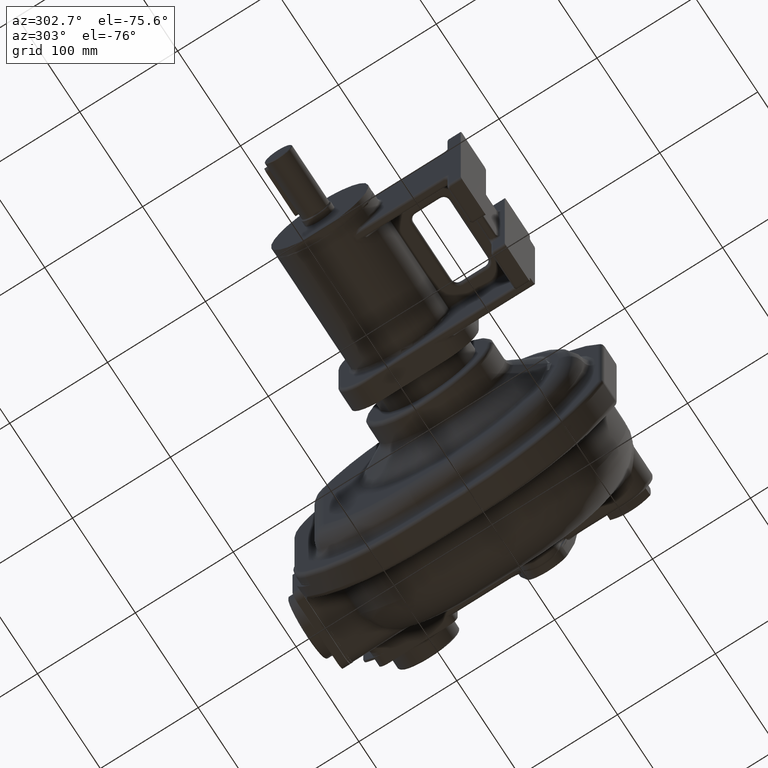
[diagram: clean part render]
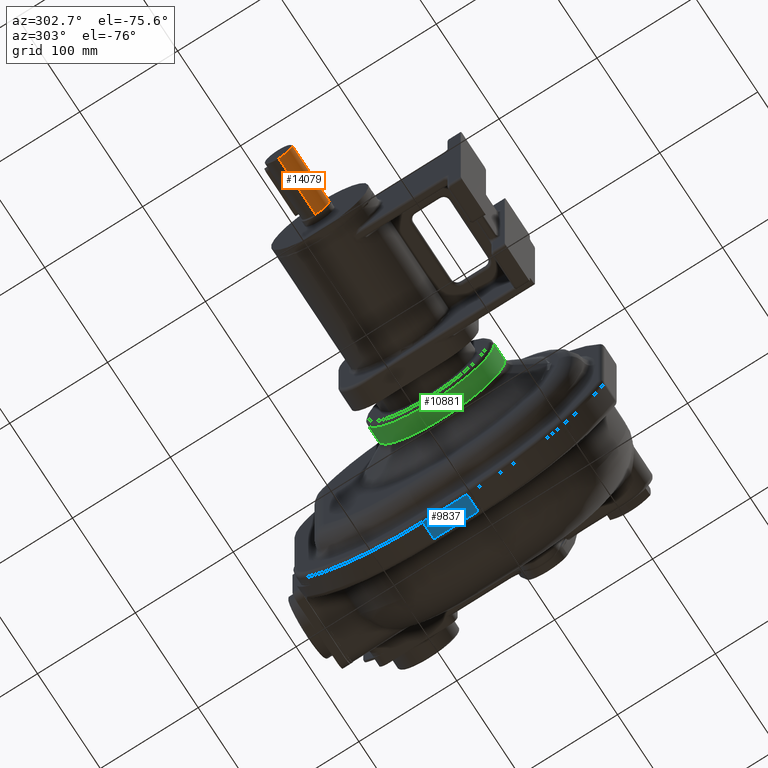
[diagram: same view with three faces highlighted in distinct colors, each labeled with its STEP entity id]
A machine part, auxiliary view with three faces highlighted in distinct colors.
Their STEP definitions:

[orange] entity #14079 — the highlighted cylindrical surface (edge-blend (fillet) strip) has radius 14 mm, axis along (1, 0, 0).
#3113=CARTESIAN_POINT('',(-2.808E2,0.E0,0.E0));
#3114=DIRECTION('',(1.E0,0.E0,0.E0));
#3115=DIRECTION('',(0.E0,0.E0,1.E0));
#3116=AXIS2_PLACEMENT_3D('',#3113,#3114,#3115);
#3118=DIRECTION('',(-1.E0,0.E0,0.E0));
#3119=VECTOR('',#3118,5.87E1);
#3120=CARTESIAN_POINT('',(-2.808E2,0.E0,-1.4E1));
#3121=LINE('',#3120,#3119);
#3122=CARTESIAN_POINT('',(-3.395E2,0.E0,0.E0));
#3123=DIRECTION('',(-1.E0,0.E0,0.E0));
#3124=DIRECTION('',(0.E0,0.E0,-1.E0));
#3125=AXIS2_PLACEMENT_3D('',#3122,#3123,#3124);
#3127=DIRECTION('',(-1.E0,0.E0,0.E0));
#3128=VECTOR('',#3127,5.87E1);
#3129=CARTESIAN_POINT('',(-2.808E2,0.E0,1.4E1));
#3130=LINE('',#3129,#3128);
#9125=CARTESIAN_POINT('',(-3.395E2,0.E0,-1.4E1));
#9126=CARTESIAN_POINT('',(-3.395E2,0.E0,1.4E1));
#9127=VERTEX_POINT('',#9125);
#9128=VERTEX_POINT('',#9126);
#9135=CARTESIAN_POINT('',(-2.808E2,0.E0,-1.4E1));
#9136=CARTESIAN_POINT('',(-2.808E2,0.E0,1.4E1));
#9137=VERTEX_POINT('',#9135);
#9138=VERTEX_POINT('',#9136);
#14067=CARTESIAN_POINT('',(-3.556E2,0.E0,0.E0));
#14068=DIRECTION('',(1.E0,0.E0,0.E0));
#14069=DIRECTION('',(0.E0,0.E0,1.E0));
#14070=AXIS2_PLACEMENT_3D('',#14067,#14068,#14069);
#14071=CYLINDRICAL_SURFACE('',#14070,1.4E1);
#14072=ORIENTED_EDGE('',*,*,#14005,.T.);
#14073=ORIENTED_EDGE('',*,*,#14048,.T.);
#14075=ORIENTED_EDGE('',*,*,#14074,.T.);
#14076=ORIENTED_EDGE('',*,*,#14044,.F.);
#14077=EDGE_LOOP('',(#14072,#14073,#14075,#14076));
#14078=FACE_OUTER_BOUND('',#14077,.F.);
#14079=ADVANCED_FACE('',(#14078),#14071,.T.);
#3117=CIRCLE('',#3116,1.4E1);
#3126=CIRCLE('',#3125,1.4E1);
#14005=EDGE_CURVE('',#9138,#9137,#3117,.T.);
#14044=EDGE_CURVE('',#9138,#9128,#3130,.T.);
#14048=EDGE_CURVE('',#9137,#9127,#3121,.T.);
#14074=EDGE_CURVE('',#9127,#9128,#3126,.T.);

[blue] entity #9837 — the highlighted planar face has unit normal (0, 0, -1).
#232=DIRECTION('',(-1.E0,0.E0,0.E0));
#233=VECTOR('',#232,1.8E1);
#234=CARTESIAN_POINT('',(-1.45E1,4.5E0,-1.59E2));
#235=LINE('',#234,#233);
#246=DIRECTION('',(-1.E0,0.E0,0.E0));
#247=VECTOR('',#246,1.8E1);
#248=CARTESIAN_POINT('',(-1.45E1,5.E1,-1.59E2));
#249=LINE('',#248,#247);
#250=DIRECTION('',(0.E0,-1.E0,0.E0));
#251=VECTOR('',#250,4.55E1);
#252=CARTESIAN_POINT('',(-3.25E1,5.E1,-1.59E2));
#253=LINE('',#252,#251);
#254=DIRECTION('',(0.E0,-1.E0,0.E0));
#255=VECTOR('',#254,4.55E1);
#256=CARTESIAN_POINT('',(-1.45E1,5.E1,-1.59E2));
#257=LINE('',#256,#255);
#8690=CARTESIAN_POINT('',(-1.45E1,5.E1,-1.59E2));
#8691=VERTEX_POINT('',#8690);
#8694=CARTESIAN_POINT('',(-1.45E1,4.5E0,-1.59E2));
#8695=VERTEX_POINT('',#8694);
#9041=CARTESIAN_POINT('',(-3.25E1,4.5E0,-1.59E2));
#9043=VERTEX_POINT('',#9041);
#9051=CARTESIAN_POINT('',(-3.25E1,5.E1,-1.59E2));
#9052=VERTEX_POINT('',#9051);
#9824=CARTESIAN_POINT('',(-2.35E1,2.725E1,-1.59E2));
#9825=DIRECTION('',(0.E0,0.E0,-1.E0));
#9826=DIRECTION('',(0.E0,-1.E0,0.E0));
#9827=AXIS2_PLACEMENT_3D('',#9824,#9825,#9826);
#9828=PLANE('',#9827);
#9829=ORIENTED_EDGE('',*,*,#9606,.T.);
#9831=ORIENTED_EDGE('',*,*,#9830,.T.);
#9832=ORIENTED_EDGE('',*,*,#9814,.F.);
#9834=ORIENTED_EDGE('',*,*,#9833,.F.);
#9835=EDGE_LOOP('',(#9829,#9831,#9832,#9834));
#9836=FACE_OUTER_BOUND('',#9835,.F.);
#9837=ADVANCED_FACE('',(#9836),#9828,.T.);
#9606=EDGE_CURVE('',#8691,#9052,#249,.T.);
#9814=EDGE_CURVE('',#8695,#9043,#235,.T.);
#9830=EDGE_CURVE('',#9052,#9043,#253,.T.);
#9833=EDGE_CURVE('',#8691,#8695,#257,.T.);

[green] entity #10881 — the highlighted cylindrical surface (partial cylindrical patch) has radius 65 mm, axis along (1, 0, 0).
#827=CARTESIAN_POINT('',(-8.011880215352E1,0.E0,0.E0));
#828=DIRECTION('',(1.E0,0.E0,0.E0));
#829=DIRECTION('',(0.E0,-1.E0,0.E0));
#830=AXIS2_PLACEMENT_3D('',#827,#828,#829);
#852=DIRECTION('',(1.E0,0.E0,0.E0));
#853=VECTOR('',#852,1.738119784648E1);
#854=CARTESIAN_POINT('',(-9.75E1,6.5E1,-1.768809179956E-14));
#855=LINE('',#854,#853);
#856=DIRECTION('',(1.E0,0.E0,0.E0));
#857=VECTOR('',#856,1.738119784648E1);
#858=CARTESIAN_POINT('',(-9.75E1,-6.5E1,0.E0));
#859=LINE('',#858,#857);
#870=CARTESIAN_POINT('',(-9.75E1,0.E0,0.E0));
#871=DIRECTION('',(1.E0,0.E0,0.E0));
#872=DIRECTION('',(0.E0,-1.E0,0.E0));
#873=AXIS2_PLACEMENT_3D('',#870,#871,#872);
#8945=CARTESIAN_POINT('',(-8.011880215352E1,-6.5E1,0.E0));
#8947=VERTEX_POINT('',#8945);
#8949=CARTESIAN_POINT('',(-8.011880215352E1,6.5E1,-2.090557832256E-14));
#8951=VERTEX_POINT('',#8949);
#8965=CARTESIAN_POINT('',(-9.75E1,-6.5E1,0.E0));
#8966=CARTESIAN_POINT('',(-9.75E1,6.5E1,0.E0));
#8967=VERTEX_POINT('',#8965);
#8968=VERTEX_POINT('',#8966);
#10870=CARTESIAN_POINT('',(-1.037E2,0.E0,0.E0));
#10871=DIRECTION('',(1.E0,0.E0,0.E0));
#10872=DIRECTION('',(0.E0,-1.E0,0.E0));
#10873=AXIS2_PLACEMENT_3D('',#10870,#10871,#10872);
#10874=CYLINDRICAL_SURFACE('',#10873,6.5E1);
#10875=ORIENTED_EDGE('',*,*,#10861,.F.);
#10876=ORIENTED_EDGE('',*,*,#10836,.T.);
#10877=ORIENTED_EDGE('',*,*,#10808,.T.);
#10878=ORIENTED_EDGE('',*,*,#10833,.F.);
#10879=EDGE_LOOP('',(#10875,#10876,#10877,#10878));
#10880=FACE_OUTER_BOUND('',#10879,.F.);
#10881=ADVANCED_FACE('',(#10880),#10874,.T.);
#831=CIRCLE('',#830,6.5E1);
#874=CIRCLE('',#873,6.5E1);
#10808=EDGE_CURVE('',#8947,#8951,#831,.T.);
#10833=EDGE_CURVE('',#8968,#8951,#855,.T.);
#10836=EDGE_CURVE('',#8967,#8947,#859,.T.);
#10861=EDGE_CURVE('',#8967,#8968,#874,.T.);